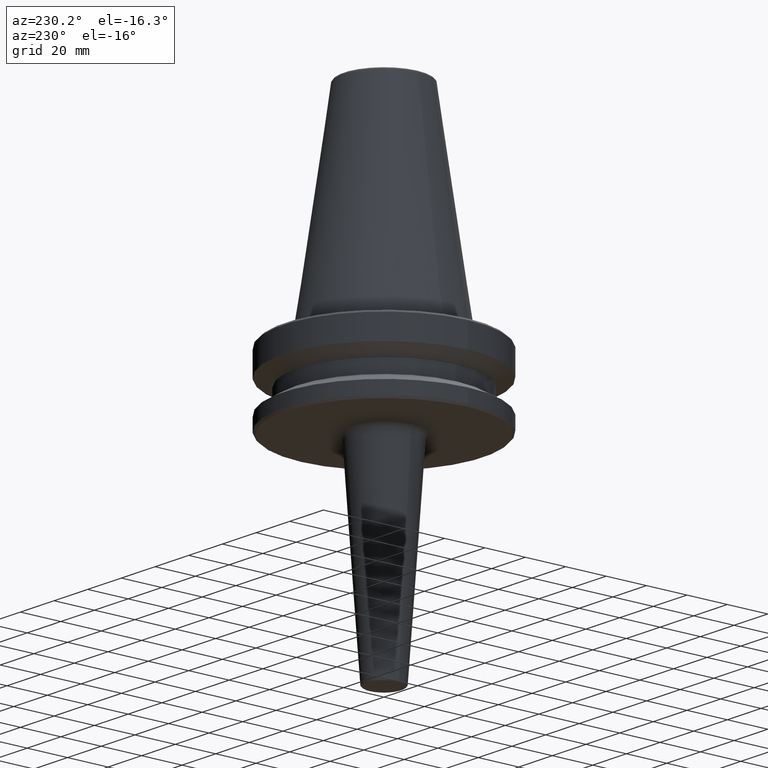
[diagram: clean part render]
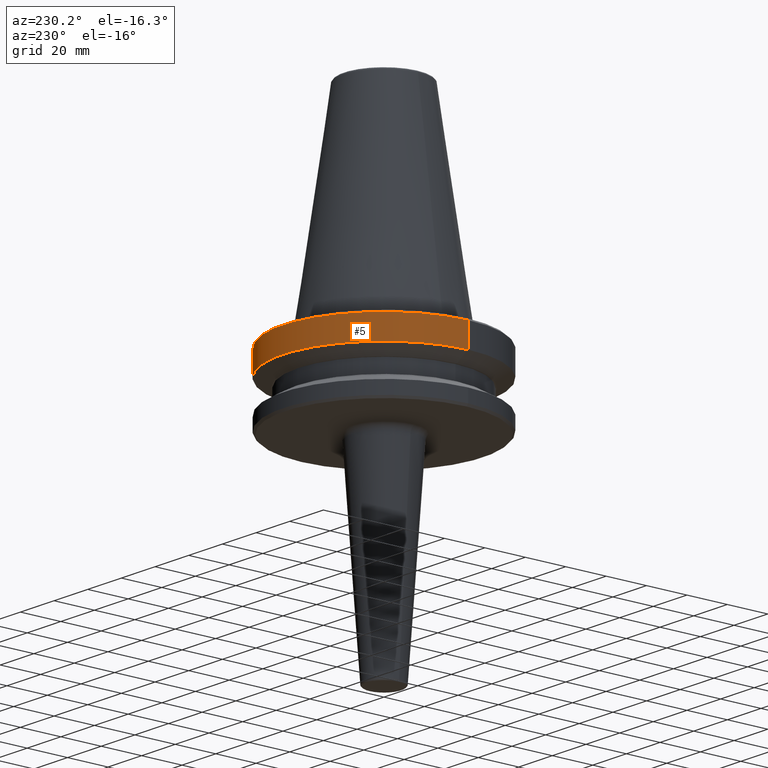
[diagram: same view with one face highlighted and labeled with its STEP entity id]
A machine part, auxiliary view. The second image highlights one B-rep face of the part: STEP entity #5.
In plain terms, the highlighted cylindrical surface (partial cylindrical patch) has radius 50 mm, axis along (-0, -0, 1).
Its self-contained STEP definition (entity closure, byte-faithful):
#5 = ADVANCED_FACE ( 'NONE', ( #127 ), #103, .T. ) ;
#29 = AXIS2_PLACEMENT_3D ( 'NONE', #902, #479, #477 ) ;
#48 = ORIENTED_EDGE ( 'NONE', *, *, #869, .F. ) ;
#77 = DIRECTION ( 'NONE',  ( -0.0000000000000000000, -0.0000000000000000000, 1.000000000000000000 ) ) ;
#87 = CARTESIAN_POINT ( 'NONE',  ( 50.00000000000000000, 0.0000000000000000000, -15.70022000322675400 ) ) ;
#103 = CYLINDRICAL_SURFACE ( 'NONE', #29, 50.00000000000000000 ) ;
#123 = VERTEX_POINT ( 'NONE', #542 ) ;
#127 = FACE_OUTER_BOUND ( 'NONE', #689, .T. ) ;
#167 = DIRECTION ( 'NONE',  ( -0.0000000000000000000, -0.0000000000000000000, 1.000000000000000000 ) ) ;
#189 = CARTESIAN_POINT ( 'NONE',  ( 0.0000000000000000000, 0.0000000000000000000, -15.70022000322675400 ) ) ;
#202 = ORIENTED_EDGE ( 'NONE', *, *, #370, .T. ) ;
#205 = DIRECTION ( 'NONE',  ( -0.0000000000000000000, -0.0000000000000000000, 1.000000000000000000 ) ) ;
#347 = CARTESIAN_POINT ( 'NONE',  ( -50.00000000000000000, 6.123233995736766100E-015, 124.5046326327850600 ) ) ;
#357 = LINE ( 'NONE', #347, #644 ) ;
#368 = VECTOR ( 'NONE', #77, 1000.000000000000000 ) ;
#370 = EDGE_CURVE ( 'NONE', #977, #567, #849, .T. ) ;
#385 = LINE ( 'NONE', #554, #368 ) ;
#453 = EDGE_CURVE ( 'NONE', #720, #123, #569, .T. ) ;
#477 = DIRECTION ( 'NONE',  ( 1.000000000000000000, 0.0000000000000000000, 0.0000000000000000000 ) ) ;
#479 = DIRECTION ( 'NONE',  ( -0.0000000000000000000, -0.0000000000000000000, 1.000000000000000000 ) ) ;
#530 = AXIS2_PLACEMENT_3D ( 'NONE', #189, #167, #839 ) ;
#542 = CARTESIAN_POINT ( 'NONE',  ( -50.00000000000000000, 6.123233995736766100E-015, -3.999999999999989800 ) ) ;
#549 = CARTESIAN_POINT ( 'NONE',  ( -50.00000000000000000, 6.123233995736766900E-015, -15.70022000322675400 ) ) ;
#554 = CARTESIAN_POINT ( 'NONE',  ( 50.00000000000000000, 0.0000000000000000000, 124.5046326327850600 ) ) ;
#567 = VERTEX_POINT ( 'NONE', #549 ) ;
#569 = CIRCLE ( 'NONE', #941, 50.00000000000000000 ) ;
#602 = CARTESIAN_POINT ( 'NONE',  ( 0.0000000000000000000, 0.0000000000000000000, -3.999999999999989800 ) ) ;
#621 = ORIENTED_EDGE ( 'NONE', *, *, #453, .F. ) ;
#644 = VECTOR ( 'NONE', #898, 1000.000000000000000 ) ;
#656 = EDGE_CURVE ( 'NONE', #567, #123, #357, .T. ) ;
#689 = EDGE_LOOP ( 'NONE', ( #202, #862, #621, #48 ) ) ;
#720 = VERTEX_POINT ( 'NONE', #910 ) ;
#839 = DIRECTION ( 'NONE',  ( 1.000000000000000000, 0.0000000000000000000, 0.0000000000000000000 ) ) ;
#849 = CIRCLE ( 'NONE', #530, 50.00000000000000000 ) ;
#862 = ORIENTED_EDGE ( 'NONE', *, *, #656, .T. ) ;
#869 = EDGE_CURVE ( 'NONE', #977, #720, #385, .T. ) ;
#887 = DIRECTION ( 'NONE',  ( 1.000000000000000000, 0.0000000000000000000, 0.0000000000000000000 ) ) ;
#898 = DIRECTION ( 'NONE',  ( -0.0000000000000000000, -0.0000000000000000000, 1.000000000000000000 ) ) ;
#902 = CARTESIAN_POINT ( 'NONE',  ( 0.0000000000000000000, 0.0000000000000000000, 124.5046326327850600 ) ) ;
#910 = CARTESIAN_POINT ( 'NONE',  ( 50.00000000000000000, 0.0000000000000000000, -3.999999999999989800 ) ) ;
#941 = AXIS2_PLACEMENT_3D ( 'NONE', #602, #205, #887 ) ;
#977 = VERTEX_POINT ( 'NONE', #87 ) ;